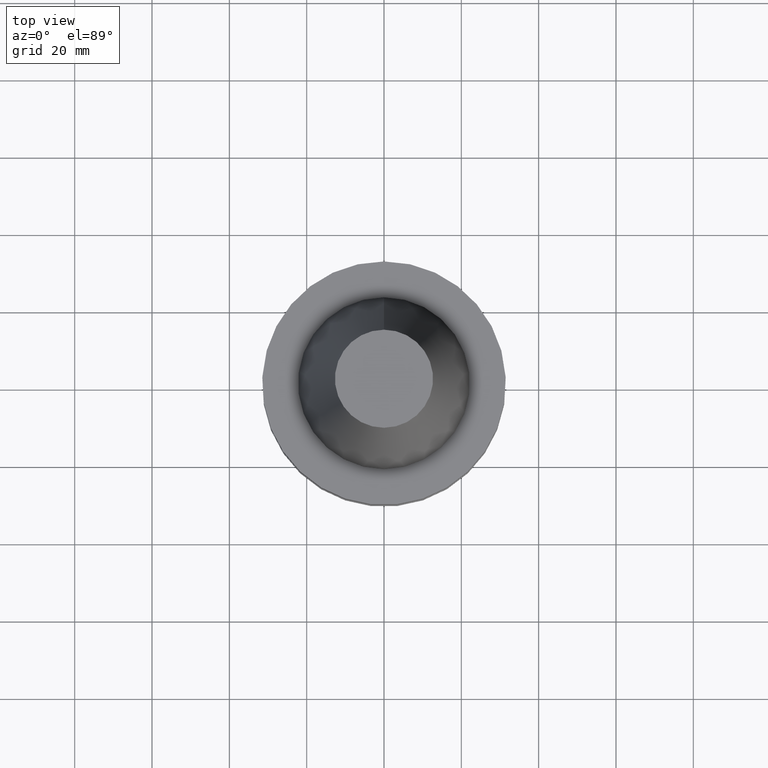
[diagram: clean part render]
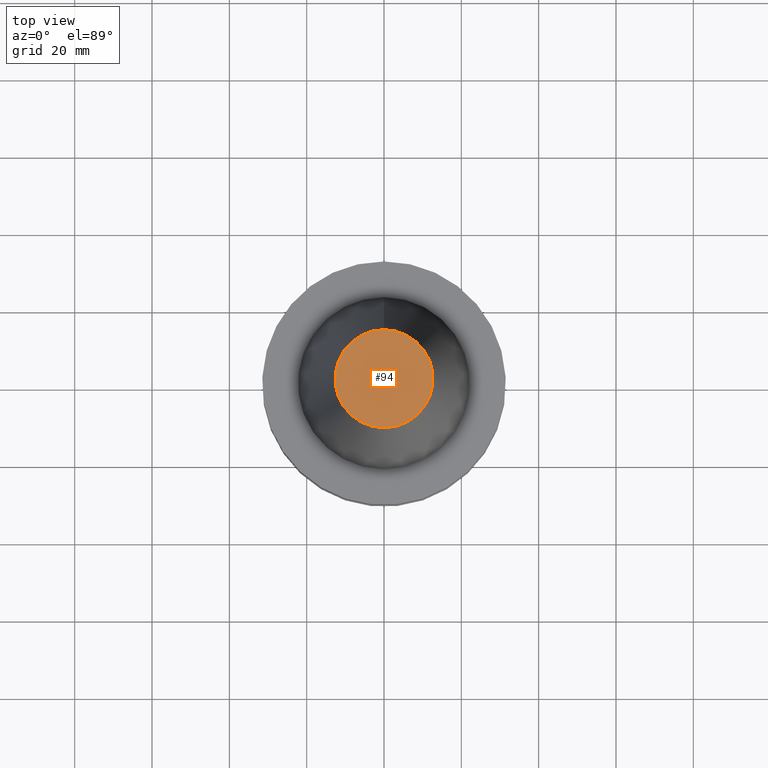
[diagram: same view with one face highlighted and labeled with its STEP entity id]
A machine part, top view. The second image highlights one B-rep face of the part: STEP entity #94.
In plain terms, the highlighted planar face has unit normal (-0, 0, 1).
Its self-contained STEP definition (entity closure, byte-faithful):
#73=EDGE_CURVE('Unnamed[1]',#180,#180,#181,.T.);
#94=ADVANCED_FACE('Unnamed[1]',(#213),#214,.T.);
#180=VERTEX_POINT('',#319);
#181=CIRCLE('',#320,12.6875000000001);
#213=FACE_OUTER_BOUND('',#360,.T.);
#214=PLANE('',#361);
#319=CARTESIAN_POINT('',(-4.00459503321185E-015,12.6875000000002,65.4000000000001));
#320=AXIS2_PLACEMENT_3D('',#474,#475,#476);
#360=EDGE_LOOP('',(#511));
#361=AXIS2_PLACEMENT_3D('',#512,#513,#514);
#474=CARTESIAN_POINT('',(-4.00459503321185E-015,7.66184639650765E-014,65.4000000000001));
#475=DIRECTION('',(6.12323399573677E-017,-5.49881288585004E-016,-1.0));
#476=DIRECTION('',(2.88433652680606E-032,1.0,-5.49881288585004E-016));
#511=ORIENTED_EDGE('',*,*,#73,.F.);
#512=CARTESIAN_POINT('',(-4.00459503321185E-015,6.34375000000014,65.4000000000001));
#513=DIRECTION('',(-6.12323399573677E-017,9.97602686800683E-016,1.0));
#514=DIRECTION('',(-5.62583941297938E-032,-1.0,9.97602686800683E-016));